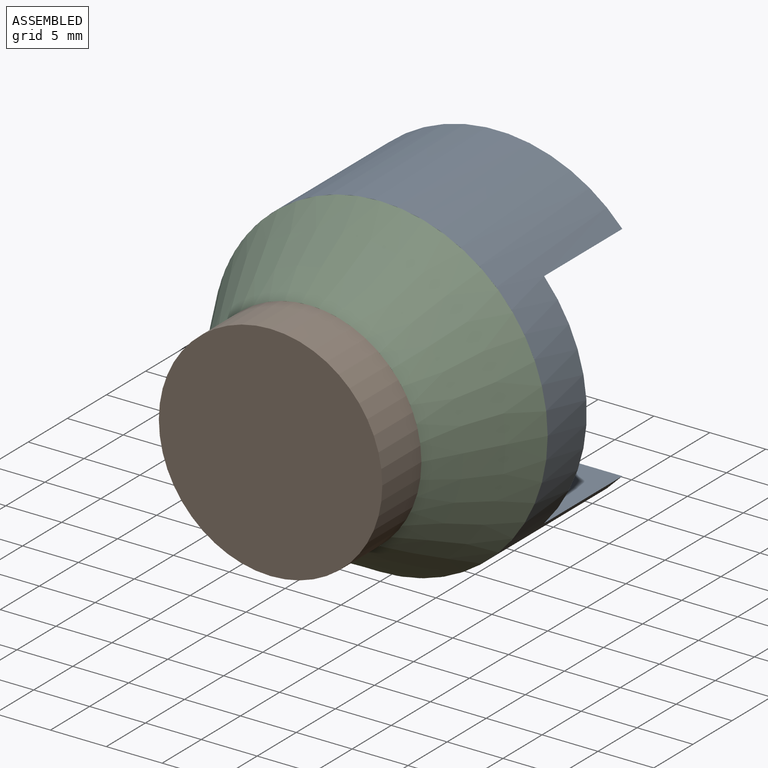
[diagram: assembled view]
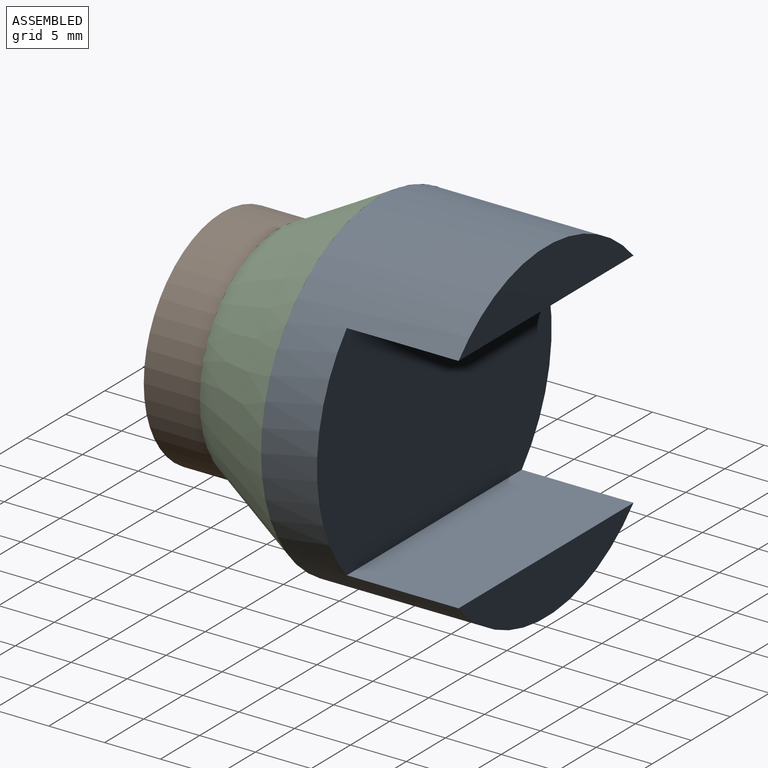
[diagram: assembled view, second angle]
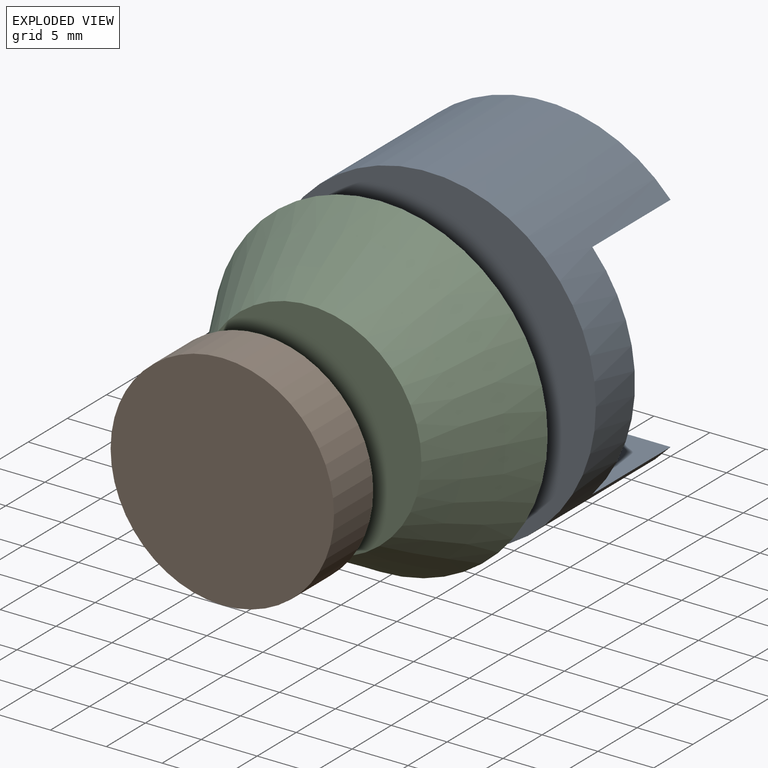
[diagram: exploded view]
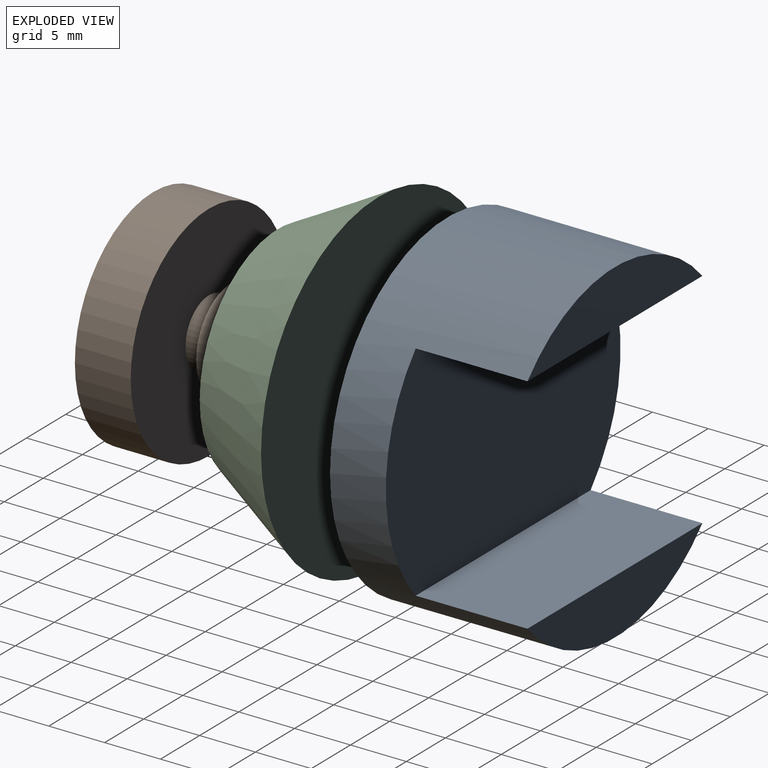
[diagram: exploded view, second angle]
ASSEMBLY  parts=3 mates=2
PART A: 11 faces, bbox 30x18x30 mm
  f0: cylinder r=15mm len=30mm, axis (0,1,0), area 975.9mm2, adj f1,f2,f3,f8,f9,f10
  f1: plane 22.36x5mm, normal (0,1,0), area 77.4mm2, adj f0,f10
  f2: plane 30x30mm, normal (0,-1,0), area 678.6mm2, adj f0,f4
  f3: plane 22.36x5mm, normal (0,1,0), area 77.4mm2, adj f0,f9
  f4: cylinder r=3mm len=6mm, axis (0,1,0), area 37.7mm2, adj f2,f7
  f5: cylinder r=4.5mm len=9mm, axis (0,1,0), area 28.3mm2, adj f6,f7
  f6: plane 9x9mm, normal (0,-1,0), area 63.6mm2, adj f5
  f7: plane 9x9mm, normal (0,1,0), area 35.3mm2, adj f4,f5
  f8: plane 30x20mm, normal (0,1,0), area 552mm2, adj f0,f9,f10
  f9: plane 22.36x10mm, normal (0,0,1), area 223.6mm2, adj f0,f3,f8
  f10: plane 22.36x10mm, normal (0,0,-1), area 223.6mm2, adj f0,f1,f8
PART B: 7 faces, bbox 20x8x20 mm
  f0: cylinder r=10mm len=20mm, axis (0,1,0), area 314.2mm2, adj f1,f2
  f1: plane 20x20mm, normal (0,-1,0), area 285.9mm2, adj f0,f3
  f2: plane 20x20mm, normal (0,1,0), area 314.2mm2, adj f0
  f3: cylinder r=3mm len=6mm, axis (0,1,0), area 37.7mm2, adj f1,f6
  f4: cylinder r=4.5mm len=9mm, axis (0,1,0), area 28.3mm2, adj f5,f6
  f5: plane 9x9mm, normal (0,-1,0), area 63.6mm2, adj f4
  f6: plane 9x9mm, normal (0,1,0), area 35.3mm2, adj f3,f4
PART C: 11 faces, bbox 30x30x9 mm
  f0: plane 9x9mm, normal (0,0,1), area 63.6mm2, adj f1
  f1: cylinder r=4.5mm len=9mm, axis (0,0,1), area 28.3mm2, adj f0,f2
  f2: plane 9x9mm, normal (0,0,-1), area 35.3mm2, adj f1,f3
  f3: cylinder r=3mm len=6mm, axis (0,0,1), area 37.7mm2, adj f2,f4
  f4: plane 20x20mm, normal (0,0,1), area 285.9mm2, adj f3,f5
  f5: cone r=10mm half-angle=29.1deg, axis (0,0,-1), area 808.6mm2, adj f4,f6
  f6: plane 30x30mm, normal (0,0,-1), area 678.6mm2, adj f5,f7
  f7: cylinder r=3mm len=6mm, axis (0,0,1), area 37.7mm2, adj f6,f8
  f8: plane 9x9mm, normal (0,0,1), area 35.3mm2, adj f7,f9
  f9: cylinder r=4.5mm len=9mm, axis (0,0,1), area 28.3mm2, adj f8,f10
  f10: plane 9x9mm, normal (0,0,-1), area 63.6mm2, adj f9
PLACE A at identity fixed
PLACE B rot(axis=(1,0,0),180deg) t=(0,-29,0)mm
PLACE C rot(axis=(1,0,0),90deg) t=(-15,-15,0)mm
MATE fastened A.f0 <-> C.f1  axis (0,-1,0) through (0,-15,0)mm
MATE fastened B.f0 <-> C.f1  axis (0,1,0) through (0,-24,0)mm
